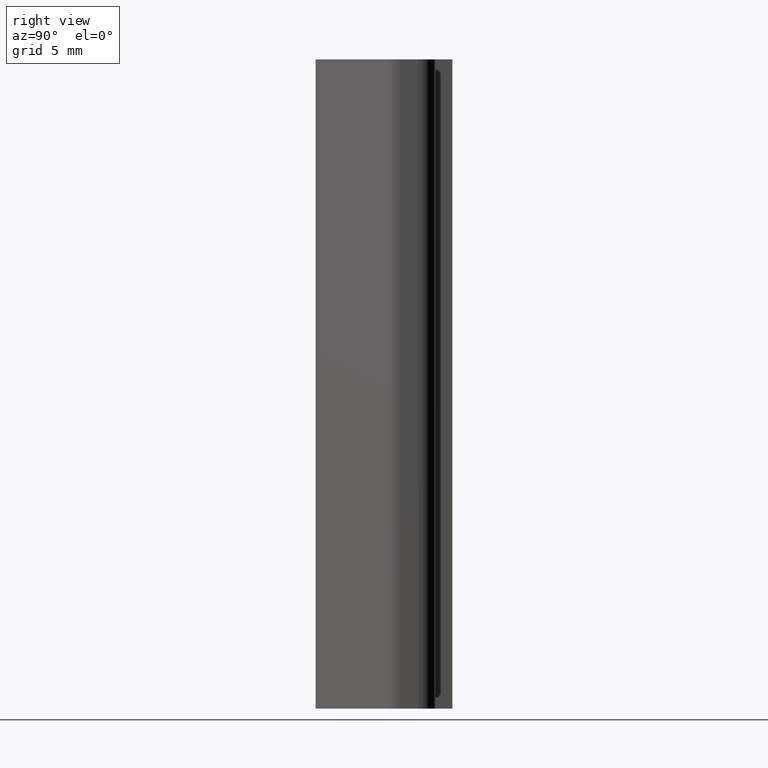
[diagram: clean part render]
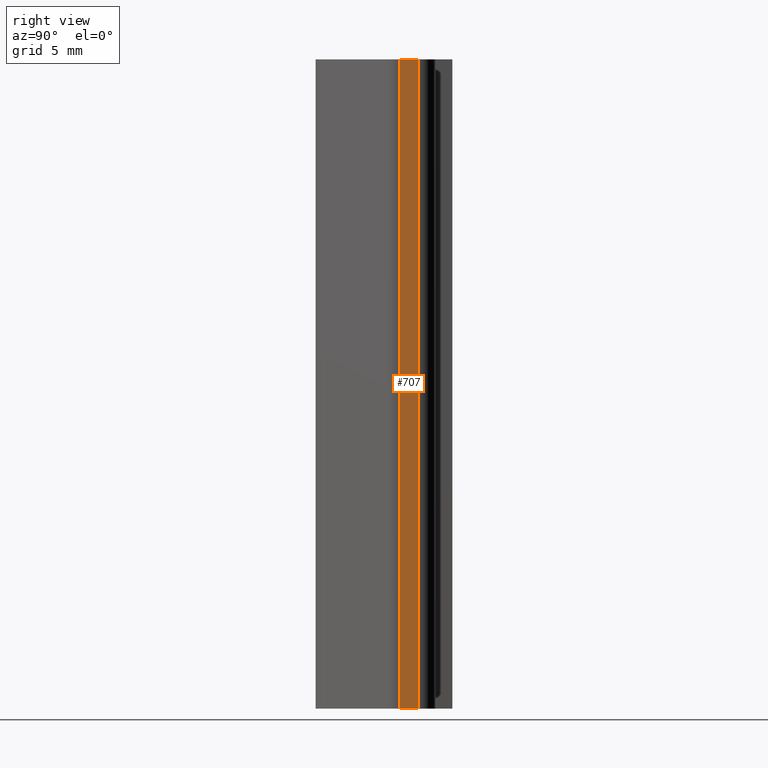
[diagram: same view with one face highlighted and labeled with its STEP entity id]
A machine part, right view. The second image highlights one B-rep face of the part: STEP entity #707.
In plain terms, the highlighted planar face has unit normal (1, 0, 0).
Its self-contained STEP definition (entity closure, byte-faithful):
#454=CARTESIAN_POINT('',(9.218338135971266,2.750243613001743,-19.0));
#455=VERTEX_POINT('',#454);
#463=CARTESIAN_POINT('',(9.218338135971266,1.664457173001750,-19.0));
#464=VERTEX_POINT('',#463);
#465=CARTESIAN_POINT('',(9.218338135971266,1.664457173001751,-19.0));
#466=DIRECTION('',(0.0,1.0,0.0));
#467=VECTOR('',#466,1.085786439999993);
#468=LINE('',#465,#467);
#469=EDGE_CURVE('',#464,#455,#468,.T.);
#664=CARTESIAN_POINT('',(9.218338135971266,2.750243613001743,19.0));
#665=VERTEX_POINT('',#664);
#673=CARTESIAN_POINT('',(9.218338135971266,2.750243613001743,19.0));
#674=DIRECTION('',(0.0,0.0,-1.0));
#675=VECTOR('',#674,38.0);
#676=LINE('',#673,#675);
#677=EDGE_CURVE('',#665,#455,#676,.T.);
#684=CARTESIAN_POINT('',(9.218338135971266,2.750243613001743,0.0));
#685=DIRECTION('',(1.0,0.0,0.0));
#686=DIRECTION('',(0.0,0.0,-1.0));
#687=AXIS2_PLACEMENT_3D('',#684,#685,#686);
#688=PLANE('',#687);
#689=CARTESIAN_POINT('',(9.218338135971266,1.664457173001750,19.0));
#690=VERTEX_POINT('',#689);
#691=CARTESIAN_POINT('',(9.218338135971266,2.750243613001743,19.0));
#692=DIRECTION('',(0.0,-1.0,0.0));
#693=VECTOR('',#692,1.085786439999993);
#694=LINE('',#691,#693);
#695=EDGE_CURVE('',#665,#690,#694,.T.);
#696=ORIENTED_EDGE('',*,*,#695,.T.);
#697=CARTESIAN_POINT('',(9.218338135971266,1.664457173001750,19.0));
#698=DIRECTION('',(0.0,0.0,-1.0));
#699=VECTOR('',#698,38.0);
#700=LINE('',#697,#699);
#701=EDGE_CURVE('',#690,#464,#700,.T.);
#702=ORIENTED_EDGE('',*,*,#701,.T.);
#703=ORIENTED_EDGE('',*,*,#469,.T.);
#704=ORIENTED_EDGE('',*,*,#677,.F.);
#705=EDGE_LOOP('',(#696,#702,#703,#704));
#706=FACE_OUTER_BOUND('',#705,.T.);
#707=ADVANCED_FACE('',(#706),#688,.T.);